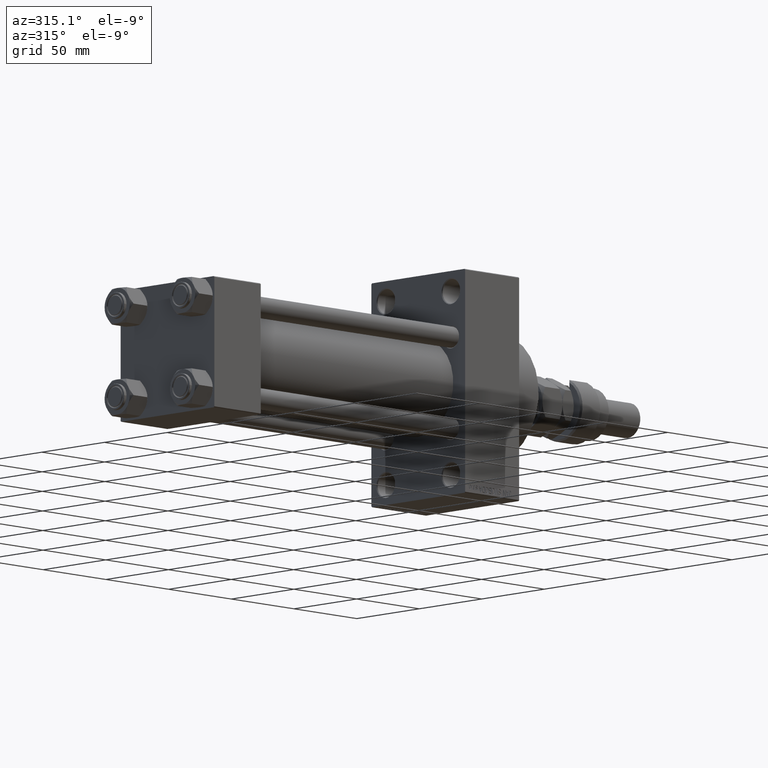
[diagram: clean part render]
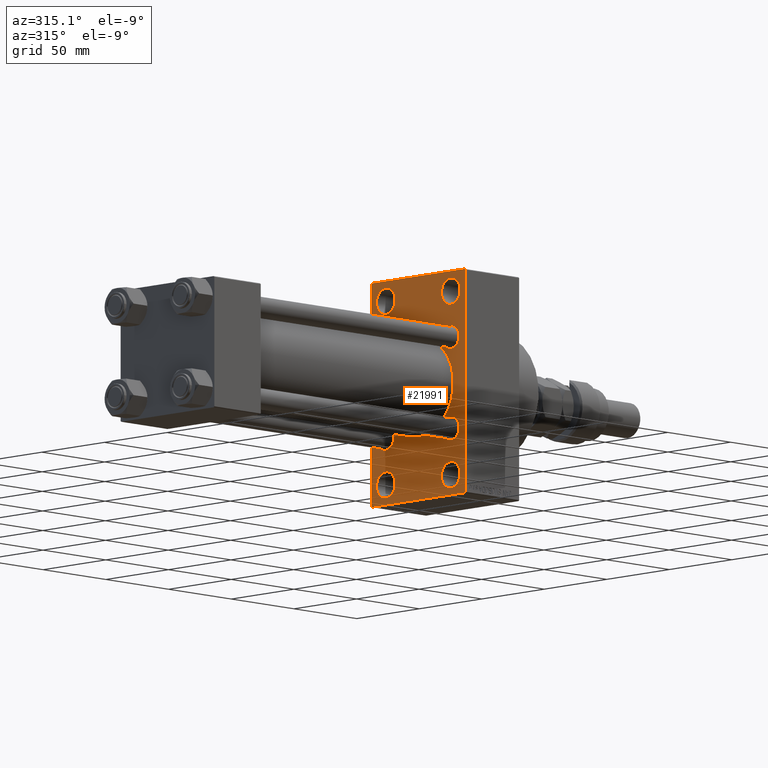
[diagram: same view with one face highlighted and labeled with its STEP entity id]
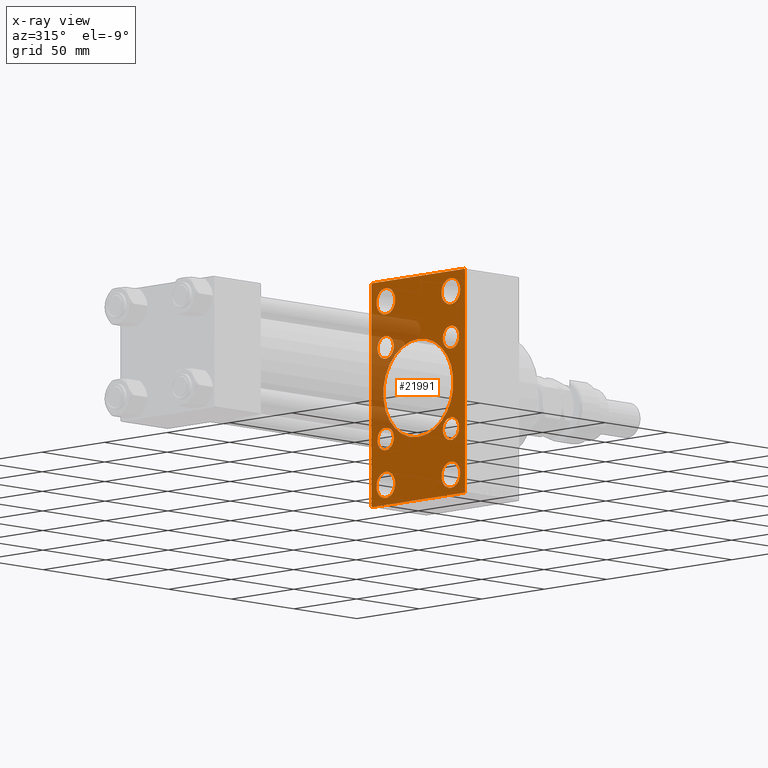
[diagram: x-ray of the same camera — body ghosted, the highlighted face saturated]
A machine part, auxiliary view. The second image highlights one B-rep face of the part: STEP entity #21991.
The next image is the same camera in x-ray: the body ghosted, the highlighted face saturated — about 19% of this face is hidden behind the body in this view.
In plain terms, the highlighted planar face has unit normal (-1, 0, 0).
Its self-contained STEP definition (entity closure, byte-faithful):
#5 = CARTESIAN_POINT ( 'NONE',  ( 200.0000000000000000, 0.000000000000000000, 0.000000000000000000 ) ) ;
#53 = CIRCLE ( 'NONE', #39779, 6.500000000000008882 ) ;
#197 = CIRCLE ( 'NONE', #12837, 6.500000000000008882 ) ;
#209 = EDGE_CURVE ( 'NONE', #3817, #15372, #53, .T. ) ;
#224 = DIRECTION ( 'NONE',  ( 0.000000000000000000, 0.000000000000000000, 1.000000000000000000 ) ) ;
#316 = EDGE_CURVE ( 'NONE', #27457, #4042, #45716, .T. ) ;
#689 = ORIENTED_EDGE ( 'NONE', *, *, #41650, .T. ) ;
#1314 = CARTESIAN_POINT ( 'NONE',  ( 200.0000000000000000, 37.00000000000004974, -64.00000000000000000 ) ) ;
#1805 = EDGE_CURVE ( 'NONE', #26202, #51716, #30508, .T. ) ;
#1835 = DIRECTION ( 'NONE',  ( 0.000000000000000000, 0.000000000000000000, 1.000000000000000000 ) ) ;
#1863 = DIRECTION ( 'NONE',  ( -0.000000000000000000, 0.7071067811865524577, 0.7071067811865426878 ) ) ;
#2147 = CARTESIAN_POINT ( 'NONE',  ( 200.0000000000000000, -26.14999999999999147, 19.65000000000000213 ) ) ;
#2383 = EDGE_CURVE ( 'NONE', #34325, #33697, #6842, .T. ) ;
#2592 = ORIENTED_EDGE ( 'NONE', *, *, #1805, .T. ) ;
#2739 = CARTESIAN_POINT ( 'NONE',  ( 200.0000000000000000, 50.49999999999950973, -50.50000000000090949 ) ) ;
#2804 = VECTOR ( 'NONE', #1863, 1000.000000000000000 ) ;
#3173 = ORIENTED_EDGE ( 'NONE', *, *, #47512, .T. ) ;
#3622 = DIRECTION ( 'NONE',  ( 1.000000000000000000, -0.000000000000000000, 0.000000000000000000 ) ) ;
#3817 = VERTEX_POINT ( 'NONE', #2147 ) ;
#3846 = DIRECTION ( 'NONE',  ( 1.000000000000000000, -0.000000000000000000, 0.000000000000000000 ) ) ;
#4018 = VERTEX_POINT ( 'NONE', #11584 ) ;
#4042 = VERTEX_POINT ( 'NONE', #12899 ) ;
#4401 = ORIENTED_EDGE ( 'NONE', *, *, #37620, .T. ) ;
#4497 = FACE_BOUND ( 'NONE', #31644, .T. ) ;
#4812 = LINE ( 'NONE', #37382, #20371 ) ;
#5005 = DIRECTION ( 'NONE',  ( 1.000000000000000000, -0.000000000000000000, 0.000000000000000000 ) ) ;
#5093 = DIRECTION ( 'NONE',  ( 0.000000000000000000, 0.000000000000000000, 1.000000000000000000 ) ) ;
#5296 = CARTESIAN_POINT ( 'NONE',  ( 200.0000000000000000, 26.00000000000000000, -60.00000000000000000 ) ) ;
#5569 = VERTEX_POINT ( 'NONE', #24355 ) ;
#5590 = AXIS2_PLACEMENT_3D ( 'NONE', #50497, #14213, #21658 ) ;
#6249 = LINE ( 'NONE', #14197, #20443 ) ;
#6532 = DIRECTION ( 'NONE',  ( 0.000000000000000000, 0.000000000000000000, 1.000000000000000000 ) ) ;
#6672 = DIRECTION ( 'NONE',  ( 0.000000000000000000, 0.000000000000000000, 1.000000000000000000 ) ) ;
#6842 = CIRCLE ( 'NONE', #24593, 7.500000000000007105 ) ;
#6853 = EDGE_CURVE ( 'NONE', #5569, #38368, #6249, .T. ) ;
#7032 = VERTEX_POINT ( 'NONE', #44410 ) ;
#7193 = CARTESIAN_POINT ( 'NONE',  ( 200.0000000000000000, -25.99999999999999645, 60.00000000000000711 ) ) ;
#7261 = CARTESIAN_POINT ( 'NONE',  ( 200.0000000000000000, 26.14999999999999858, 26.15000000000000213 ) ) ;
#7389 = DIRECTION ( 'NONE',  ( -0.000000000000000000, 0.000000000000000000, 1.000000000000000000 ) ) ;
#7555 = ORIENTED_EDGE ( 'NONE', *, *, #9488, .T. ) ;
#7876 = CARTESIAN_POINT ( 'NONE',  ( 200.0000000000000000, 26.14999999999999858, 26.15000000000000213 ) ) ;
#8115 = ORIENTED_EDGE ( 'NONE', *, *, #12741, .T. ) ;
#8222 = DIRECTION ( 'NONE',  ( 0.000000000000000000, 0.000000000000000000, -1.000000000000000000 ) ) ;
#8592 = LINE ( 'NONE', #20268, #14629 ) ;
#8688 = DIRECTION ( 'NONE',  ( 1.000000000000000000, -0.000000000000000000, 0.000000000000000000 ) ) ;
#8759 = CARTESIAN_POINT ( 'NONE',  ( 200.0000000000000000, 26.00000000000000000, 44.99999999999998579 ) ) ;
#9488 = EDGE_CURVE ( 'NONE', #35266, #50355, #8592, .T. ) ;
#9781 = LINE ( 'NONE', #45834, #2804 ) ;
#10679 = AXIS2_PLACEMENT_3D ( 'NONE', #26647, #42846, #6532 ) ;
#11584 = CARTESIAN_POINT ( 'NONE',  ( 200.0000000000000000, -26.14999999999999147, -32.65000000000001990 ) ) ;
#11771 = VECTOR ( 'NONE', #25851, 1000.000000000000114 ) ;
#12079 = CIRCLE ( 'NONE', #39999, 6.500000000000008882 ) ;
#12169 = DIRECTION ( 'NONE',  ( -1.000000000000000000, 0.000000000000000000, -0.000000000000000000 ) ) ;
#12348 = AXIS2_PLACEMENT_3D ( 'NONE', #7876, #24029, #224 ) ;
#12741 = EDGE_CURVE ( 'NONE', #33697, #34325, #26598, .T. ) ;
#12837 = AXIS2_PLACEMENT_3D ( 'NONE', #34562, #25834, #14180 ) ;
#12899 = CARTESIAN_POINT ( 'NONE',  ( 200.0000000000000000, 8.269258236473784371E-16, -28.00000000000000000 ) ) ;
#12947 = ORIENTED_EDGE ( 'NONE', *, *, #48811, .T. ) ;
#13147 = CARTESIAN_POINT ( 'NONE',  ( 200.0000000000000000, -25.99999999999999645, -44.99999999999998579 ) ) ;
#13844 = EDGE_CURVE ( 'NONE', #38368, #7032, #51612, .T. ) ;
#13934 = AXIS2_PLACEMENT_3D ( 'NONE', #32325, #40843, #8222 ) ;
#14039 = FACE_BOUND ( 'NONE', #15525, .T. ) ;
#14096 = ORIENTED_EDGE ( 'NONE', *, *, #32999, .F. ) ;
#14180 = DIRECTION ( 'NONE',  ( 0.000000000000000000, 0.000000000000000000, 1.000000000000000000 ) ) ;
#14197 = CARTESIAN_POINT ( 'NONE',  ( 200.0000000000000000, 50.49999999999998579, 50.49999999999998579 ) ) ;
#14213 = DIRECTION ( 'NONE',  ( 1.000000000000000000, -0.000000000000000000, 0.000000000000000000 ) ) ;
#14629 = VECTOR ( 'NONE', #40951, 1000.000000000000000 ) ;
#14769 = CARTESIAN_POINT ( 'NONE',  ( 200.0000000000000000, -2.602085213965210642E-15, 28.00000000000000000 ) ) ;
#15322 = EDGE_CURVE ( 'NONE', #28565, #32532, #42785, .T. ) ;
#15334 = ORIENTED_EDGE ( 'NONE', *, *, #38768, .T. ) ;
#15372 = VERTEX_POINT ( 'NONE', #37273 ) ;
#15525 = EDGE_LOOP ( 'NONE', ( #15334, #25089 ) ) ;
#15797 = DIRECTION ( 'NONE',  ( 0.000000000000000000, 0.000000000000000000, 1.000000000000000000 ) ) ;
#16042 = EDGE_LOOP ( 'NONE', ( #28583, #32410 ) ) ;
#16397 = FACE_BOUND ( 'NONE', #27566, .T. ) ;
#16464 = ORIENTED_EDGE ( 'NONE', *, *, #45042, .T. ) ;
#17275 = EDGE_CURVE ( 'NONE', #45519, #26648, #21062, .T. ) ;
#17691 = DIRECTION ( 'NONE',  ( 0.000000000000000000, 0.000000000000000000, 1.000000000000000000 ) ) ;
#17800 = EDGE_LOOP ( 'NONE', ( #3173, #23436 ) ) ;
#18269 = CIRCLE ( 'NONE', #26690, 6.500000000000008882 ) ;
#18271 = FACE_BOUND ( 'NONE', #17800, .T. ) ;
#18366 = VERTEX_POINT ( 'NONE', #32429 ) ;
#18521 = EDGE_LOOP ( 'NONE', ( #7555, #46008, #22427, #689, #14096, #22496, #49819, #50127 ) ) ;
#18956 = CIRCLE ( 'NONE', #31659, 7.500000000000007105 ) ;
#19230 = CARTESIAN_POINT ( 'NONE',  ( 200.0000000000000000, -25.99999999999999645, 52.50000000000000000 ) ) ;
#19310 = FACE_BOUND ( 'NONE', #36868, .T. ) ;
#19438 = AXIS2_PLACEMENT_3D ( 'NONE', #36585, #33108, #49785 ) ;
#19449 = DIRECTION ( 'NONE',  ( 0.000000000000000000, 0.000000000000000000, 1.000000000000000000 ) ) ;
#19613 = DIRECTION ( 'NONE',  ( 0.000000000000000000, 0.000000000000000000, 1.000000000000000000 ) ) ;
#20009 = CARTESIAN_POINT ( 'NONE',  ( 200.0000000000000000, -25.99999999999999645, 52.50000000000000000 ) ) ;
#20227 = EDGE_CURVE ( 'NONE', #18366, #39907, #33523, .T. ) ;
#20268 = CARTESIAN_POINT ( 'NONE',  ( 200.0000000000000000, 37.49999999999999289, -64.00000000000000000 ) ) ;
#20371 = VECTOR ( 'NONE', #29405, 1000.000000000000000 ) ;
#20443 = VECTOR ( 'NONE', #29832, 1000.000000000000114 ) ;
#20663 = DIRECTION ( 'NONE',  ( 1.000000000000000000, -0.000000000000000000, 0.000000000000000000 ) ) ;
#21062 = CIRCLE ( 'NONE', #34555, 7.500000000000007105 ) ;
#21086 = VERTEX_POINT ( 'NONE', #45343 ) ;
#21250 = CARTESIAN_POINT ( 'NONE',  ( 200.0000000000000000, 26.00000000000000000, -52.49999999999999289 ) ) ;
#21308 = AXIS2_PLACEMENT_3D ( 'NONE', #7261, #3846, #19449 ) ;
#21554 = AXIS2_PLACEMENT_3D ( 'NONE', #23338, #46955, #6672 ) ;
#21658 = DIRECTION ( 'NONE',  ( 0.000000000000000000, 0.000000000000000000, 1.000000000000000000 ) ) ;
#21991 = ADVANCED_FACE ( 'NONE', ( #19310, #50325, #14039, #18271, #34423, #16397, #44766, #35743, #4497, #32021 ), #31490, .T. ) ;
#22218 = EDGE_CURVE ( 'NONE', #4018, #23181, #18269, .T. ) ;
#22427 = ORIENTED_EDGE ( 'NONE', *, *, #32407, .F. ) ;
#22496 = ORIENTED_EDGE ( 'NONE', *, *, #6853, .T. ) ;
#22643 = CARTESIAN_POINT ( 'NONE',  ( 200.0000000000000000, 37.50000000000000000, 63.49999999999998579 ) ) ;
#23181 = VERTEX_POINT ( 'NONE', #24540 ) ;
#23338 = CARTESIAN_POINT ( 'NONE',  ( 200.0000000000000000, 26.00000000000000000, 52.49999999999999289 ) ) ;
#23436 = ORIENTED_EDGE ( 'NONE', *, *, #17275, .T. ) ;
#23567 = CARTESIAN_POINT ( 'NONE',  ( 200.0000000000000000, -26.14999999999999147, 26.15000000000000924 ) ) ;
#23671 = CARTESIAN_POINT ( 'NONE',  ( 200.0000000000000000, 26.00000000000000000, -44.99999999999998579 ) ) ;
#24029 = DIRECTION ( 'NONE',  ( 1.000000000000000000, -0.000000000000000000, 0.000000000000000000 ) ) ;
#24355 = CARTESIAN_POINT ( 'NONE',  ( 200.0000000000000000, 37.00000000000000000, 63.99999999999998579 ) ) ;
#24503 = EDGE_LOOP ( 'NONE', ( #28431, #43030 ) ) ;
#24540 = CARTESIAN_POINT ( 'NONE',  ( 200.0000000000000000, -26.14999999999999147, -19.65000000000000213 ) ) ;
#24593 = AXIS2_PLACEMENT_3D ( 'NONE', #28514, #33267, #49426 ) ;
#24913 = EDGE_LOOP ( 'NONE', ( #38088, #8115 ) ) ;
#25048 = LINE ( 'NONE', #41262, #39855 ) ;
#25089 = ORIENTED_EDGE ( 'NONE', *, *, #36308, .T. ) ;
#25506 = VERTEX_POINT ( 'NONE', #46013 ) ;
#25834 = DIRECTION ( 'NONE',  ( 1.000000000000000000, -0.000000000000000000, 0.000000000000000000 ) ) ;
#25851 = DIRECTION ( 'NONE',  ( 0.000000000000000000, -0.7071067811865376918, 0.7071067811865573427 ) ) ;
#25896 = VERTEX_POINT ( 'NONE', #23671 ) ;
#26202 = VERTEX_POINT ( 'NONE', #7193 ) ;
#26545 = CARTESIAN_POINT ( 'NONE',  ( 200.0000000000000000, -37.00000000000001421, 63.99999999999997158 ) ) ;
#26598 = CIRCLE ( 'NONE', #41893, 7.500000000000007105 ) ;
#26647 = CARTESIAN_POINT ( 'NONE',  ( 200.0000000000000000, 26.14999999999999858, -26.15000000000000213 ) ) ;
#26648 = VERTEX_POINT ( 'NONE', #50267 ) ;
#26690 = AXIS2_PLACEMENT_3D ( 'NONE', #37326, #5005, #17691 ) ;
#26727 = CARTESIAN_POINT ( 'NONE',  ( 200.0000000000000000, 37.50000000000000000, 63.99999999999998579 ) ) ;
#26934 = DIRECTION ( 'NONE',  ( 1.000000000000000000, -0.000000000000000000, 0.000000000000000000 ) ) ;
#27457 = VERTEX_POINT ( 'NONE', #14769 ) ;
#27566 = EDGE_LOOP ( 'NONE', ( #41828, #4401 ) ) ;
#27795 = CARTESIAN_POINT ( 'NONE',  ( 200.0000000000000000, 26.00000000000000000, -52.49999999999999289 ) ) ;
#28296 = CARTESIAN_POINT ( 'NONE',  ( 200.0000000000000000, -25.99999999999999645, -52.49999999999999289 ) ) ;
#28431 = ORIENTED_EDGE ( 'NONE', *, *, #38277, .T. ) ;
#28514 = CARTESIAN_POINT ( 'NONE',  ( 200.0000000000000000, -25.99999999999999645, -52.49999999999999289 ) ) ;
#28565 = VERTEX_POINT ( 'NONE', #33747 ) ;
#28583 = ORIENTED_EDGE ( 'NONE', *, *, #39970, .T. ) ;
#29129 = VERTEX_POINT ( 'NONE', #5296 ) ;
#29405 = DIRECTION ( 'NONE',  ( 0.000000000000000000, 0.000000000000000000, -1.000000000000000000 ) ) ;
#29457 = EDGE_CURVE ( 'NONE', #50355, #21086, #43024, .T. ) ;
#29832 = DIRECTION ( 'NONE',  ( 0.000000000000000000, 0.7071067811865474617, -0.7071067811865474617 ) ) ;
#30508 = CIRCLE ( 'NONE', #47423, 7.500000000000007105 ) ;
#30745 = CARTESIAN_POINT ( 'NONE',  ( 200.0000000000000000, -37.00000000000002132, -64.00000000000001421 ) ) ;
#31256 = DIRECTION ( 'NONE',  ( 1.000000000000000000, -0.000000000000000000, 0.000000000000000000 ) ) ;
#31490 = PLANE ( 'NONE',  #36029 ) ;
#31644 = EDGE_LOOP ( 'NONE', ( #37867, #45607 ) ) ;
#31659 = AXIS2_PLACEMENT_3D ( 'NONE', #20009, #36707, #32449 ) ;
#32021 = FACE_OUTER_BOUND ( 'NONE', #18521, .T. ) ;
#32325 = CARTESIAN_POINT ( 'NONE',  ( 200.0000000000000000, -2.602085213965210642E-15, 0.000000000000000000 ) ) ;
#32407 = EDGE_CURVE ( 'NONE', #25506, #21086, #4812, .T. ) ;
#32410 = ORIENTED_EDGE ( 'NONE', *, *, #20227, .T. ) ;
#32429 = CARTESIAN_POINT ( 'NONE',  ( 200.0000000000000000, 26.14999999999999858, -32.65000000000001279 ) ) ;
#32449 = DIRECTION ( 'NONE',  ( 0.000000000000000000, 0.000000000000000000, 1.000000000000000000 ) ) ;
#32532 = VERTEX_POINT ( 'NONE', #51085 ) ;
#32999 = EDGE_CURVE ( 'NONE', #5569, #37760, #25048, .T. ) ;
#33108 = DIRECTION ( 'NONE',  ( 1.000000000000000000, 0.000000000000000000, 0.000000000000000000 ) ) ;
#33267 = DIRECTION ( 'NONE',  ( 1.000000000000000000, -0.000000000000000000, 0.000000000000000000 ) ) ;
#33523 = CIRCLE ( 'NONE', #10679, 6.500000000000008882 ) ;
#33697 = VERTEX_POINT ( 'NONE', #41327 ) ;
#33747 = CARTESIAN_POINT ( 'NONE',  ( 200.0000000000000000, 26.14999999999999858, 32.65000000000001990 ) ) ;
#34325 = VERTEX_POINT ( 'NONE', #13147 ) ;
#34423 = FACE_BOUND ( 'NONE', #24503, .T. ) ;
#34555 = AXIS2_PLACEMENT_3D ( 'NONE', #35942, #52077, #15797 ) ;
#34562 = CARTESIAN_POINT ( 'NONE',  ( 200.0000000000000000, -26.14999999999999147, 26.15000000000000924 ) ) ;
#34862 = CIRCLE ( 'NONE', #36561, 7.500000000000007105 ) ;
#35128 = VECTOR ( 'NONE', #42923, 1000.000000000000000 ) ;
#35266 = VERTEX_POINT ( 'NONE', #1314 ) ;
#35395 = DIRECTION ( 'NONE',  ( 0.000000000000000000, 0.000000000000000000, 1.000000000000000000 ) ) ;
#35743 = FACE_BOUND ( 'NONE', #43294, .T. ) ;
#35942 = CARTESIAN_POINT ( 'NONE',  ( 200.0000000000000000, 26.00000000000000000, 52.49999999999999289 ) ) ;
#36029 = AXIS2_PLACEMENT_3D ( 'NONE', #5, #12169, #7389 ) ;
#36308 = EDGE_CURVE ( 'NONE', #29129, #25896, #38964, .T. ) ;
#36377 = DIRECTION ( 'NONE',  ( 1.000000000000000000, -0.000000000000000000, 0.000000000000000000 ) ) ;
#36561 = AXIS2_PLACEMENT_3D ( 'NONE', #21250, #36377, #5093 ) ;
#36585 = CARTESIAN_POINT ( 'NONE',  ( 200.0000000000000000, -2.602085213965210642E-15, 0.000000000000000000 ) ) ;
#36707 = DIRECTION ( 'NONE',  ( 1.000000000000000000, -0.000000000000000000, 0.000000000000000000 ) ) ;
#36868 = EDGE_LOOP ( 'NONE', ( #2592, #12947 ) ) ;
#37273 = CARTESIAN_POINT ( 'NONE',  ( 200.0000000000000000, -26.14999999999999147, 32.65000000000001990 ) ) ;
#37326 = CARTESIAN_POINT ( 'NONE',  ( 200.0000000000000000, -26.14999999999999147, -26.15000000000000924 ) ) ;
#37382 = CARTESIAN_POINT ( 'NONE',  ( 200.0000000000000000, -37.49999999999999289, 63.99999999999997158 ) ) ;
#37383 = CIRCLE ( 'NONE', #21308, 6.500000000000008882 ) ;
#37620 = EDGE_CURVE ( 'NONE', #32532, #28565, #37383, .T. ) ;
#37760 = VERTEX_POINT ( 'NONE', #26545 ) ;
#37867 = ORIENTED_EDGE ( 'NONE', *, *, #316, .T. ) ;
#38088 = ORIENTED_EDGE ( 'NONE', *, *, #2383, .T. ) ;
#38277 = EDGE_CURVE ( 'NONE', #15372, #3817, #197, .T. ) ;
#38368 = VERTEX_POINT ( 'NONE', #22643 ) ;
#38768 = EDGE_CURVE ( 'NONE', #25896, #29129, #34862, .T. ) ;
#38896 = CARTESIAN_POINT ( 'NONE',  ( 200.0000000000000000, 26.14999999999999858, -26.15000000000000213 ) ) ;
#38964 = CIRCLE ( 'NONE', #49138, 7.500000000000007105 ) ;
#39779 = AXIS2_PLACEMENT_3D ( 'NONE', #23567, #31256, #19613 ) ;
#39855 = VECTOR ( 'NONE', #45727, 1000.000000000000000 ) ;
#39907 = VERTEX_POINT ( 'NONE', #50020 ) ;
#39970 = EDGE_CURVE ( 'NONE', #39907, #18366, #12079, .T. ) ;
#39999 = AXIS2_PLACEMENT_3D ( 'NONE', #38896, #26934, #1835 ) ;
#40223 = CIRCLE ( 'NONE', #21554, 7.500000000000007105 ) ;
#40582 = EDGE_CURVE ( 'NONE', #7032, #35266, #51187, .T. ) ;
#40843 = DIRECTION ( 'NONE',  ( 1.000000000000000000, 0.000000000000000000, 0.000000000000000000 ) ) ;
#40856 = VECTOR ( 'NONE', #43529, 999.9999999999998863 ) ;
#40951 = DIRECTION ( 'NONE',  ( 0.000000000000000000, -1.000000000000000000, -1.850371707708594563E-16 ) ) ;
#41262 = CARTESIAN_POINT ( 'NONE',  ( 200.0000000000000000, 37.50000000000000000, 63.99999999999998579 ) ) ;
#41327 = CARTESIAN_POINT ( 'NONE',  ( 200.0000000000000000, -25.99999999999999645, -60.00000000000000000 ) ) ;
#41650 = EDGE_CURVE ( 'NONE', #25506, #37760, #9781, .T. ) ;
#41828 = ORIENTED_EDGE ( 'NONE', *, *, #15322, .T. ) ;
#41893 = AXIS2_PLACEMENT_3D ( 'NONE', #28296, #8688, #44483 ) ;
#42728 = CIRCLE ( 'NONE', #13934, 28.00000000000000000 ) ;
#42785 = CIRCLE ( 'NONE', #12348, 6.500000000000008882 ) ;
#42842 = CIRCLE ( 'NONE', #5590, 6.500000000000008882 ) ;
#42846 = DIRECTION ( 'NONE',  ( 1.000000000000000000, -0.000000000000000000, 0.000000000000000000 ) ) ;
#42923 = DIRECTION ( 'NONE',  ( 0.000000000000000000, -5.421010862427522170E-17, -1.000000000000000000 ) ) ;
#43024 = LINE ( 'NONE', #46017, #11771 ) ;
#43030 = ORIENTED_EDGE ( 'NONE', *, *, #209, .T. ) ;
#43294 = EDGE_LOOP ( 'NONE', ( #16464, #46024 ) ) ;
#43529 = DIRECTION ( 'NONE',  ( -0.000000000000000000, -0.7071067811865574537, -0.7071067811865376918 ) ) ;
#43980 = DIRECTION ( 'NONE',  ( 0.000000000000000000, 0.000000000000000000, 1.000000000000000000 ) ) ;
#44410 = CARTESIAN_POINT ( 'NONE',  ( 200.0000000000000000, 37.49999999999999289, -63.50000000000007105 ) ) ;
#44483 = DIRECTION ( 'NONE',  ( 0.000000000000000000, 0.000000000000000000, 1.000000000000000000 ) ) ;
#44766 = FACE_BOUND ( 'NONE', #16042, .T. ) ;
#45042 = EDGE_CURVE ( 'NONE', #23181, #4018, #42842, .T. ) ;
#45343 = CARTESIAN_POINT ( 'NONE',  ( 200.0000000000000000, -37.49999999999999289, -63.50000000000002842 ) ) ;
#45519 = VERTEX_POINT ( 'NONE', #8759 ) ;
#45607 = ORIENTED_EDGE ( 'NONE', *, *, #49567, .T. ) ;
#45716 = CIRCLE ( 'NONE', #19438, 28.00000000000000000 ) ;
#45727 = DIRECTION ( 'NONE',  ( 0.000000000000000000, -1.000000000000000000, -1.850371707708594563E-16 ) ) ;
#45834 = CARTESIAN_POINT ( 'NONE',  ( 200.0000000000000000, -50.49999999999972999, 50.50000000000042633 ) ) ;
#46008 = ORIENTED_EDGE ( 'NONE', *, *, #29457, .T. ) ;
#46013 = CARTESIAN_POINT ( 'NONE',  ( 200.0000000000000000, -37.49999999999999289, 63.50000000000000000 ) ) ;
#46017 = CARTESIAN_POINT ( 'NONE',  ( 200.0000000000000000, -50.50000000000054001, -50.49999999999913314 ) ) ;
#46024 = ORIENTED_EDGE ( 'NONE', *, *, #22218, .T. ) ;
#46536 = CARTESIAN_POINT ( 'NONE',  ( 200.0000000000000000, -25.99999999999999645, 44.99999999999999289 ) ) ;
#46955 = DIRECTION ( 'NONE',  ( 1.000000000000000000, -0.000000000000000000, 0.000000000000000000 ) ) ;
#47423 = AXIS2_PLACEMENT_3D ( 'NONE', #19230, #3622, #35395 ) ;
#47512 = EDGE_CURVE ( 'NONE', #26648, #45519, #40223, .T. ) ;
#48811 = EDGE_CURVE ( 'NONE', #51716, #26202, #18956, .T. ) ;
#49138 = AXIS2_PLACEMENT_3D ( 'NONE', #27795, #20663, #43980 ) ;
#49426 = DIRECTION ( 'NONE',  ( 0.000000000000000000, 0.000000000000000000, 1.000000000000000000 ) ) ;
#49567 = EDGE_CURVE ( 'NONE', #4042, #27457, #42728, .T. ) ;
#49785 = DIRECTION ( 'NONE',  ( 0.000000000000000000, 0.000000000000000000, -1.000000000000000000 ) ) ;
#49819 = ORIENTED_EDGE ( 'NONE', *, *, #13844, .T. ) ;
#50020 = CARTESIAN_POINT ( 'NONE',  ( 200.0000000000000000, 26.14999999999999858, -19.64999999999999503 ) ) ;
#50127 = ORIENTED_EDGE ( 'NONE', *, *, #40582, .T. ) ;
#50267 = CARTESIAN_POINT ( 'NONE',  ( 200.0000000000000000, 26.00000000000000000, 60.00000000000000000 ) ) ;
#50325 = FACE_BOUND ( 'NONE', #24913, .T. ) ;
#50355 = VERTEX_POINT ( 'NONE', #30745 ) ;
#50497 = CARTESIAN_POINT ( 'NONE',  ( 200.0000000000000000, -26.14999999999999147, -26.15000000000000924 ) ) ;
#51085 = CARTESIAN_POINT ( 'NONE',  ( 200.0000000000000000, 26.14999999999999858, 19.64999999999999147 ) ) ;
#51187 = LINE ( 'NONE', #2739, #40856 ) ;
#51612 = LINE ( 'NONE', #26727, #35128 ) ;
#51716 = VERTEX_POINT ( 'NONE', #46536 ) ;
#52077 = DIRECTION ( 'NONE',  ( 1.000000000000000000, -0.000000000000000000, 0.000000000000000000 ) ) ;